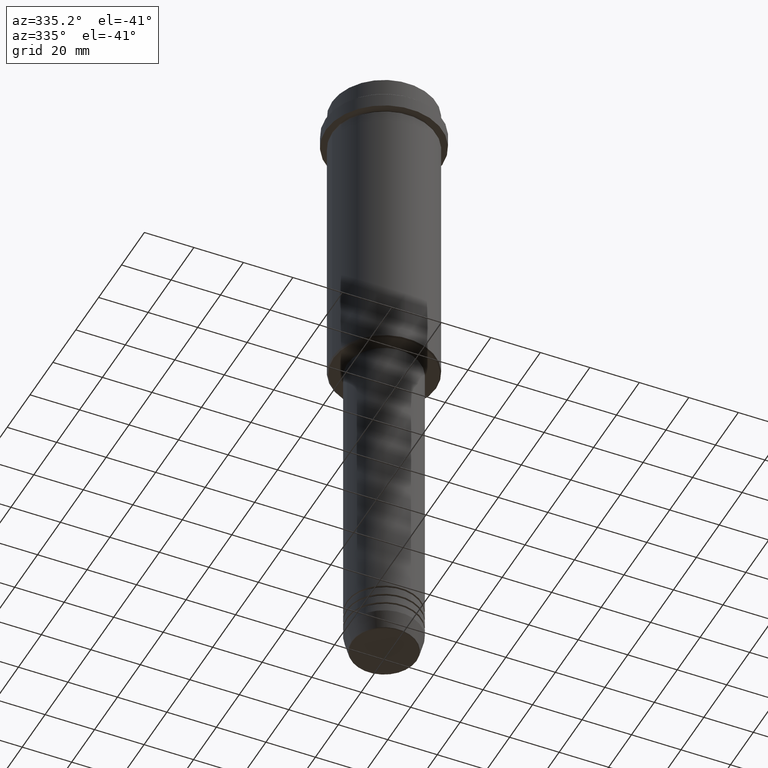
[diagram: clean part render]
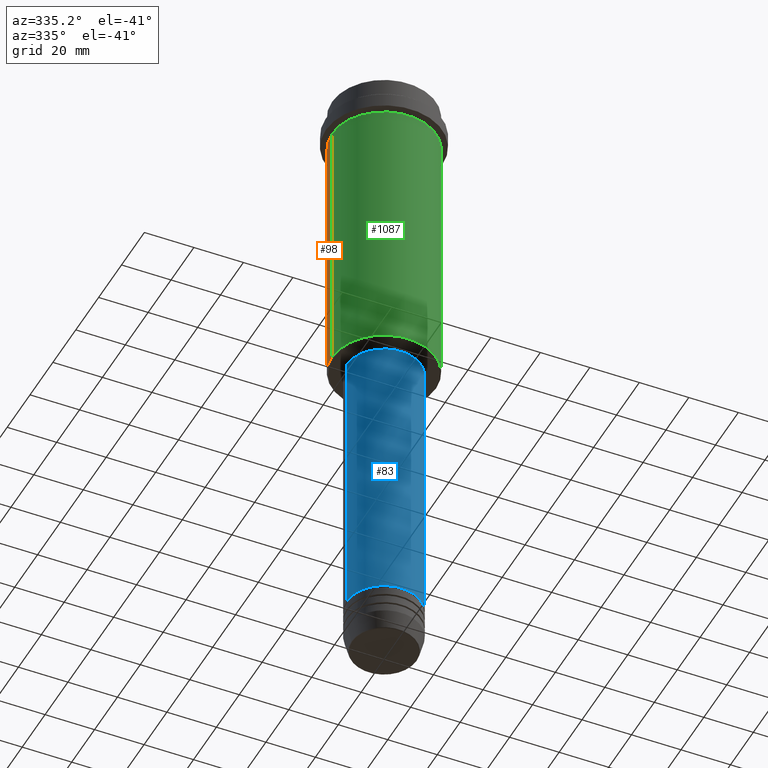
[diagram: same view with three faces highlighted in distinct colors, each labeled with its STEP entity id]
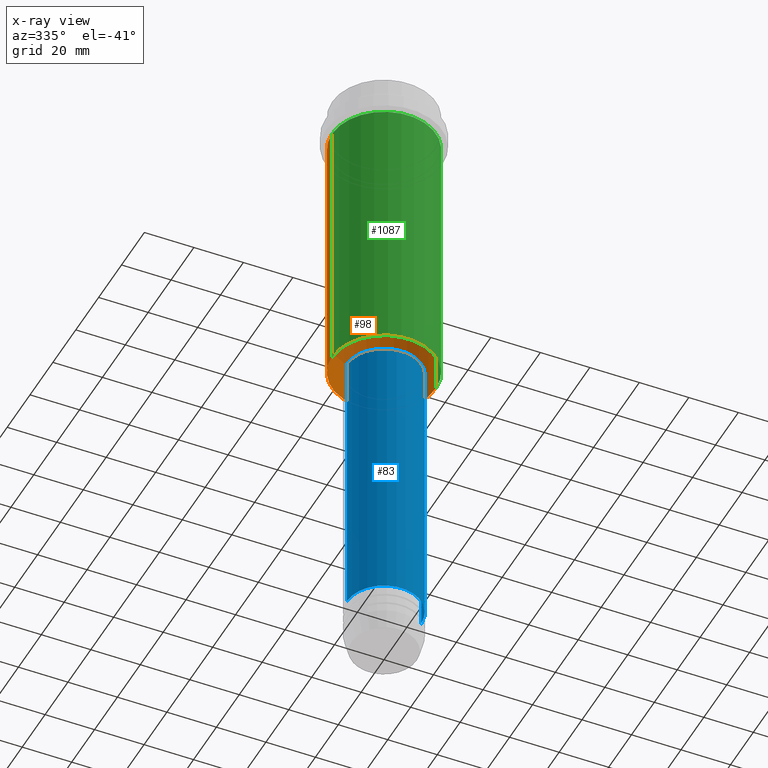
[diagram: x-ray of the same camera — body ghosted, the three highlighted faces saturated]
A machine part, auxiliary view with three faces highlighted in distinct colors.
The next image is the same camera in x-ray (body ghosted, the three faces saturated) — at least one of them is partly hidden behind the body in this view.
Their STEP definitions:

[orange] entity #98 — the highlighted cylindrical surface (partial cylindrical patch) has radius 21 mm, axis along (-0, -0, 1).
#10 = CARTESIAN_POINT ( 'NONE',  ( 0.000000000000000000, 0.000000000000000000, -124.4999999999999432 ) ) ;
#40 = AXIS2_PLACEMENT_3D ( 'NONE', #962, #759, #1091 ) ;
#60 = VERTEX_POINT ( 'NONE', #182 ) ;
#73 = LINE ( 'NONE', #726, #758 ) ;
#98 = ADVANCED_FACE ( 'NONE', ( #1290 ), #639, .T. ) ;
#157 = ORIENTED_EDGE ( 'NONE', *, *, #529, .F. ) ;
#182 = CARTESIAN_POINT ( 'NONE',  ( 20.99999999999999645, 0.000000000000000000, -16.00000000000000355 ) ) ;
#194 = CIRCLE ( 'NONE', #663, 20.99999999999999645 ) ;
#237 = DIRECTION ( 'NONE',  ( -1.000000000000000000, 0.000000000000000000, 0.000000000000000000 ) ) ;
#261 = EDGE_LOOP ( 'NONE', ( #831, #684, #1104, #157 ) ) ;
#486 = DIRECTION ( 'NONE',  ( -0.000000000000000000, -0.000000000000000000, 1.000000000000000000 ) ) ;
#527 = EDGE_CURVE ( 'NONE', #60, #1121, #1047, .T. ) ;
#529 = EDGE_CURVE ( 'NONE', #1313, #60, #73, .T. ) ;
#614 = CARTESIAN_POINT ( 'NONE',  ( 0.000000000000000000, 0.000000000000000000, -16.00000000000000355 ) ) ;
#639 = CYLINDRICAL_SURFACE ( 'NONE', #40, 20.99999999999999645 ) ;
#663 = AXIS2_PLACEMENT_3D ( 'NONE', #10, #793, #237 ) ;
#684 = ORIENTED_EDGE ( 'NONE', *, *, #971, .T. ) ;
#726 = CARTESIAN_POINT ( 'NONE',  ( 20.99999999999999645, 0.000000000000000000, 0.000000000000000000 ) ) ;
#758 = VECTOR ( 'NONE', #1175, 1000.000000000000000 ) ;
#759 = DIRECTION ( 'NONE',  ( -0.000000000000000000, -0.000000000000000000, 1.000000000000000000 ) ) ;
#793 = DIRECTION ( 'NONE',  ( -0.000000000000000000, -0.000000000000000000, 1.000000000000000000 ) ) ;
#804 = LINE ( 'NONE', #1360, #1406 ) ;
#831 = ORIENTED_EDGE ( 'NONE', *, *, #1407, .T. ) ;
#882 = CARTESIAN_POINT ( 'NONE',  ( -20.99999999999999645, 2.571758278209441267E-15, -124.4999999999999432 ) ) ;
#955 = CARTESIAN_POINT ( 'NONE',  ( -20.99999999999999645, 2.571758278209441267E-15, -16.00000000000000355 ) ) ;
#958 = CARTESIAN_POINT ( 'NONE',  ( 20.99999999999999645, 0.000000000000000000, -124.4999999999999432 ) ) ;
#962 = CARTESIAN_POINT ( 'NONE',  ( 0.000000000000000000, 0.000000000000000000, 0.000000000000000000 ) ) ;
#971 = EDGE_CURVE ( 'NONE', #1378, #1121, #804, .T. ) ;
#1047 = CIRCLE ( 'NONE', #1075, 20.99999999999999645 ) ;
#1075 = AXIS2_PLACEMENT_3D ( 'NONE', #614, #1381, #1271 ) ;
#1091 = DIRECTION ( 'NONE',  ( 1.000000000000000000, 0.000000000000000000, 0.000000000000000000 ) ) ;
#1104 = ORIENTED_EDGE ( 'NONE', *, *, #527, .F. ) ;
#1121 = VERTEX_POINT ( 'NONE', #955 ) ;
#1175 = DIRECTION ( 'NONE',  ( -0.000000000000000000, -0.000000000000000000, 1.000000000000000000 ) ) ;
#1271 = DIRECTION ( 'NONE',  ( 1.000000000000000000, 0.000000000000000000, 0.000000000000000000 ) ) ;
#1290 = FACE_OUTER_BOUND ( 'NONE', #261, .T. ) ;
#1313 = VERTEX_POINT ( 'NONE', #958 ) ;
#1360 = CARTESIAN_POINT ( 'NONE',  ( -20.99999999999999645, 2.571758278209441267E-15, 0.000000000000000000 ) ) ;
#1378 = VERTEX_POINT ( 'NONE', #882 ) ;
#1381 = DIRECTION ( 'NONE',  ( -0.000000000000000000, -0.000000000000000000, 1.000000000000000000 ) ) ;
#1406 = VECTOR ( 'NONE', #486, 1000.000000000000000 ) ;
#1407 = EDGE_CURVE ( 'NONE', #1313, #1378, #194, .T. ) ;

[blue] entity #83 — the highlighted cylindrical surface (partial cylindrical patch) has radius 15 mm, axis along (-0, -0, 1).
#83 = ADVANCED_FACE ( 'NONE', ( #624 ), #1404, .T. ) ;
#90 = VERTEX_POINT ( 'NONE', #1397 ) ;
#133 = DIRECTION ( 'NONE',  ( 1.000000000000000000, 0.000000000000000000, 0.000000000000000000 ) ) ;
#155 = AXIS2_PLACEMENT_3D ( 'NONE', #353, #206, #326 ) ;
#200 = CARTESIAN_POINT ( 'NONE',  ( -15.00000000000000000, 1.836970198721029589E-15, 0.000000000000000000 ) ) ;
#206 = DIRECTION ( 'NONE',  ( -0.000000000000000000, -0.000000000000000000, 1.000000000000000000 ) ) ;
#218 = VECTOR ( 'NONE', #306, 1000.000000000000000 ) ;
#242 = VECTOR ( 'NONE', #532, 1000.000000000000000 ) ;
#266 = AXIS2_PLACEMENT_3D ( 'NONE', #466, #340, #133 ) ;
#286 = EDGE_CURVE ( 'NONE', #90, #783, #360, .T. ) ;
#306 = DIRECTION ( 'NONE',  ( -0.000000000000000000, -0.000000000000000000, 1.000000000000000000 ) ) ;
#326 = DIRECTION ( 'NONE',  ( 1.000000000000000000, 0.000000000000000000, 0.000000000000000000 ) ) ;
#340 = DIRECTION ( 'NONE',  ( -0.000000000000000000, -0.000000000000000000, 1.000000000000000000 ) ) ;
#353 = CARTESIAN_POINT ( 'NONE',  ( 0.000000000000000000, 0.000000000000000000, -126.0000000000000000 ) ) ;
#360 = CIRCLE ( 'NONE', #266, 15.00000000000000000 ) ;
#403 = DIRECTION ( 'NONE',  ( -0.000000000000000000, -0.000000000000000000, 1.000000000000000000 ) ) ;
#426 = LINE ( 'NONE', #200, #242 ) ;
#466 = CARTESIAN_POINT ( 'NONE',  ( 0.000000000000000000, 0.000000000000000000, -240.9999999999999147 ) ) ;
#532 = DIRECTION ( 'NONE',  ( -0.000000000000000000, -0.000000000000000000, 1.000000000000000000 ) ) ;
#583 = ORIENTED_EDGE ( 'NONE', *, *, #653, .F. ) ;
#621 = CARTESIAN_POINT ( 'NONE',  ( 15.00000000000000000, 0.000000000000000000, -240.9999999999999147 ) ) ;
#624 = FACE_OUTER_BOUND ( 'NONE', #1193, .T. ) ;
#634 = AXIS2_PLACEMENT_3D ( 'NONE', #1401, #403, #1188 ) ;
#641 = CIRCLE ( 'NONE', #155, 15.00000000000000000 ) ;
#653 = EDGE_CURVE ( 'NONE', #874, #1151, #641, .T. ) ;
#748 = EDGE_CURVE ( 'NONE', #783, #1151, #868, .T. ) ;
#783 = VERTEX_POINT ( 'NONE', #621 ) ;
#868 = LINE ( 'NONE', #1292, #218 ) ;
#874 = VERTEX_POINT ( 'NONE', #1297 ) ;
#909 = ORIENTED_EDGE ( 'NONE', *, *, #286, .T. ) ;
#1151 = VERTEX_POINT ( 'NONE', #1369 ) ;
#1188 = DIRECTION ( 'NONE',  ( 1.000000000000000000, 0.000000000000000000, 0.000000000000000000 ) ) ;
#1193 = EDGE_LOOP ( 'NONE', ( #1416, #909, #1246, #583 ) ) ;
#1228 = EDGE_CURVE ( 'NONE', #90, #874, #426, .T. ) ;
#1246 = ORIENTED_EDGE ( 'NONE', *, *, #748, .T. ) ;
#1292 = CARTESIAN_POINT ( 'NONE',  ( 15.00000000000000000, 0.000000000000000000, 0.000000000000000000 ) ) ;
#1297 = CARTESIAN_POINT ( 'NONE',  ( -15.00000000000000000, 1.836970198721029589E-15, -126.0000000000000000 ) ) ;
#1369 = CARTESIAN_POINT ( 'NONE',  ( 15.00000000000000000, 0.000000000000000000, -126.0000000000000000 ) ) ;
#1397 = CARTESIAN_POINT ( 'NONE',  ( -15.00000000000000000, 1.836970198721029589E-15, -240.9999999999999147 ) ) ;
#1401 = CARTESIAN_POINT ( 'NONE',  ( 0.000000000000000000, 0.000000000000000000, 0.000000000000000000 ) ) ;
#1404 = CYLINDRICAL_SURFACE ( 'NONE', #634, 15.00000000000000000 ) ;
#1416 = ORIENTED_EDGE ( 'NONE', *, *, #1228, .F. ) ;

[green] entity #1087 — the highlighted cylindrical surface (partial cylindrical patch) has radius 21 mm, axis along (-0, -0, 1).
#24 = ORIENTED_EDGE ( 'NONE', *, *, #971, .F. ) ;
#32 = DIRECTION ( 'NONE',  ( -0.000000000000000000, -0.000000000000000000, 1.000000000000000000 ) ) ;
#60 = VERTEX_POINT ( 'NONE', #182 ) ;
#73 = LINE ( 'NONE', #726, #758 ) ;
#75 = DIRECTION ( 'NONE',  ( -0.000000000000000000, -0.000000000000000000, 1.000000000000000000 ) ) ;
#130 = CIRCLE ( 'NONE', #1261, 20.99999999999999645 ) ;
#182 = CARTESIAN_POINT ( 'NONE',  ( 20.99999999999999645, 0.000000000000000000, -16.00000000000000355 ) ) ;
#264 = AXIS2_PLACEMENT_3D ( 'NONE', #1060, #75, #1067 ) ;
#379 = DIRECTION ( 'NONE',  ( -1.000000000000000000, 0.000000000000000000, 0.000000000000000000 ) ) ;
#395 = FACE_OUTER_BOUND ( 'NONE', #526, .T. ) ;
#486 = DIRECTION ( 'NONE',  ( -0.000000000000000000, -0.000000000000000000, 1.000000000000000000 ) ) ;
#493 = EDGE_CURVE ( 'NONE', #1121, #60, #130, .T. ) ;
#497 = DIRECTION ( 'NONE',  ( -0.000000000000000000, -0.000000000000000000, 1.000000000000000000 ) ) ;
#526 = EDGE_LOOP ( 'NONE', ( #24, #630, #1252, #792 ) ) ;
#529 = EDGE_CURVE ( 'NONE', #1313, #60, #73, .T. ) ;
#598 = CYLINDRICAL_SURFACE ( 'NONE', #264, 20.99999999999999645 ) ;
#630 = ORIENTED_EDGE ( 'NONE', *, *, #1359, .T. ) ;
#726 = CARTESIAN_POINT ( 'NONE',  ( 20.99999999999999645, 0.000000000000000000, 0.000000000000000000 ) ) ;
#758 = VECTOR ( 'NONE', #1175, 1000.000000000000000 ) ;
#792 = ORIENTED_EDGE ( 'NONE', *, *, #493, .F. ) ;
#804 = LINE ( 'NONE', #1360, #1406 ) ;
#808 = CIRCLE ( 'NONE', #994, 20.99999999999999645 ) ;
#882 = CARTESIAN_POINT ( 'NONE',  ( -20.99999999999999645, 2.571758278209441267E-15, -124.4999999999999432 ) ) ;
#955 = CARTESIAN_POINT ( 'NONE',  ( -20.99999999999999645, 2.571758278209441267E-15, -16.00000000000000355 ) ) ;
#958 = CARTESIAN_POINT ( 'NONE',  ( 20.99999999999999645, 0.000000000000000000, -124.4999999999999432 ) ) ;
#971 = EDGE_CURVE ( 'NONE', #1378, #1121, #804, .T. ) ;
#994 = AXIS2_PLACEMENT_3D ( 'NONE', #1146, #497, #379 ) ;
#1037 = CARTESIAN_POINT ( 'NONE',  ( 0.000000000000000000, 0.000000000000000000, -16.00000000000000355 ) ) ;
#1060 = CARTESIAN_POINT ( 'NONE',  ( 0.000000000000000000, 0.000000000000000000, 0.000000000000000000 ) ) ;
#1067 = DIRECTION ( 'NONE',  ( 1.000000000000000000, 0.000000000000000000, 0.000000000000000000 ) ) ;
#1087 = ADVANCED_FACE ( 'NONE', ( #395 ), #598, .T. ) ;
#1121 = VERTEX_POINT ( 'NONE', #955 ) ;
#1146 = CARTESIAN_POINT ( 'NONE',  ( 0.000000000000000000, 0.000000000000000000, -124.4999999999999432 ) ) ;
#1175 = DIRECTION ( 'NONE',  ( -0.000000000000000000, -0.000000000000000000, 1.000000000000000000 ) ) ;
#1252 = ORIENTED_EDGE ( 'NONE', *, *, #529, .T. ) ;
#1258 = DIRECTION ( 'NONE',  ( 1.000000000000000000, 0.000000000000000000, 0.000000000000000000 ) ) ;
#1261 = AXIS2_PLACEMENT_3D ( 'NONE', #1037, #32, #1258 ) ;
#1313 = VERTEX_POINT ( 'NONE', #958 ) ;
#1359 = EDGE_CURVE ( 'NONE', #1378, #1313, #808, .T. ) ;
#1360 = CARTESIAN_POINT ( 'NONE',  ( -20.99999999999999645, 2.571758278209441267E-15, 0.000000000000000000 ) ) ;
#1378 = VERTEX_POINT ( 'NONE', #882 ) ;
#1406 = VECTOR ( 'NONE', #486, 1000.000000000000000 ) ;